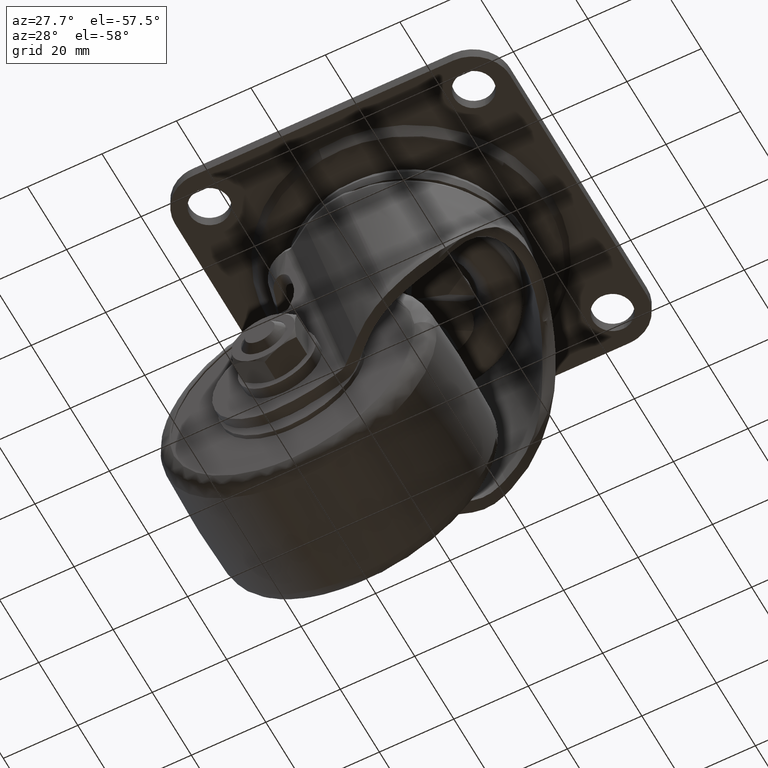
[diagram: clean part render]
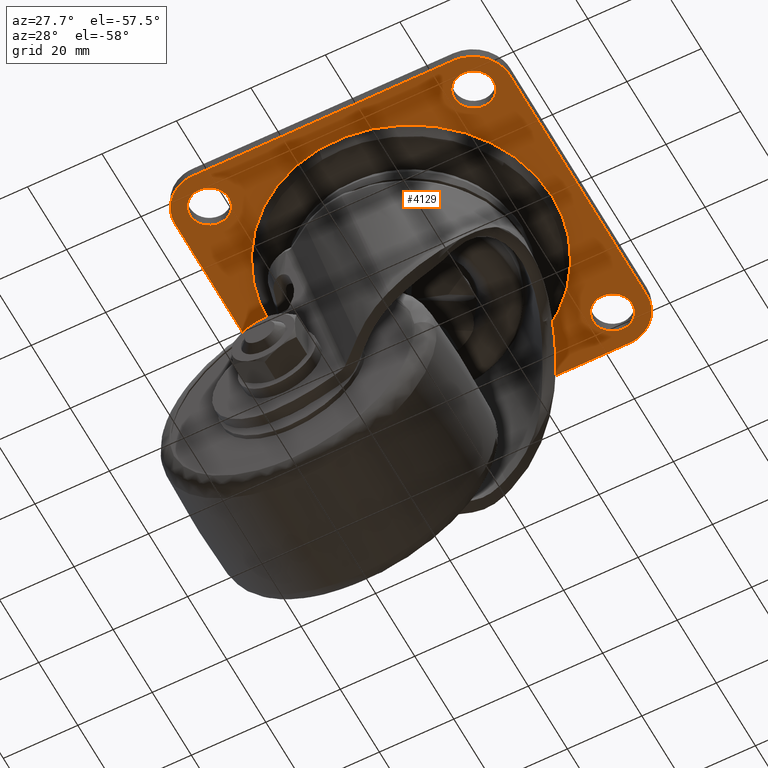
[diagram: same view with one face highlighted and labeled with its STEP entity id]
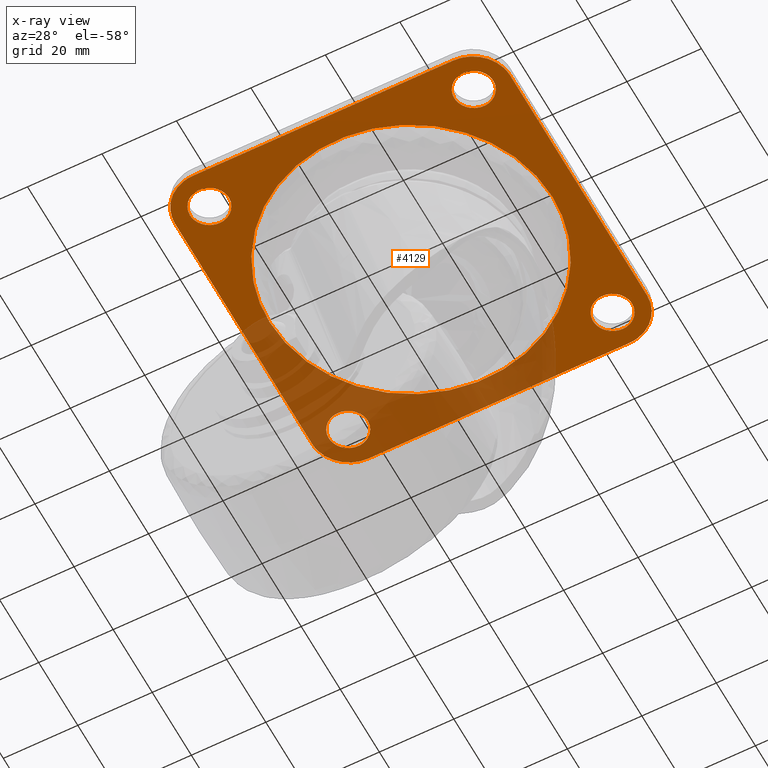
[diagram: x-ray of the same camera — body ghosted, the highlighted face saturated]
A machine part, auxiliary view. The second image highlights one B-rep face of the part: STEP entity #4129.
The next image is the same camera in x-ray: the body ghosted, the highlighted face saturated — about 30% of this face is hidden behind the body in this view.
In plain terms, the highlighted face is a freeform B-spline surface patch.
Its self-contained STEP definition (entity closure, byte-faithful):
#2417=CARTESIAN_POINT('',(-35.179495167385760,40.740207691711362,-3.200000000000090));
#2418=VERTEX_POINT('',#2417);
#2424=CARTESIAN_POINT('',(-30.250000000000000,35.500000000000000,-3.200000000000090));
#2425=VERTEX_POINT('',#2424);
#2426=CARTESIAN_POINT('',(-30.250000000000000,35.500000000000000,-3.200000000000090));
#2427=CARTESIAN_POINT('',(-30.249999999999982,40.438706851201779,-3.200000000000091));
#2428=CARTESIAN_POINT('',(-35.179495167385760,40.740207691711362,-3.200000000000091));
#2436=(BOUNDED_CURVE()B_SPLINE_CURVE(2,(#2426,#2427,#2428),.UNSPECIFIED.,.F.,.U.)B_SPLINE_CURVE_WITH_KNOTS((3,3),(0.500000000000000,0.739332962240116),.UNSPECIFIED.)CURVE()GEOMETRIC_REPRESENTATION_ITEM()RATIONAL_B_SPLINE_CURVE((1.0,0.719603993285335,0.976072041669233))REPRESENTATION_ITEM(''));
#2437=EDGE_CURVE('',#2425,#2418,#2436,.T.);
#2439=CARTESIAN_POINT('',(-35.820504832614240,30.259792308288642,-3.200000000000090));
#2440=VERTEX_POINT('',#2439);
#2441=CARTESIAN_POINT('',(-35.820504832614247,30.259792308288635,-3.200000000000091));
#2442=CARTESIAN_POINT('',(-35.660402007345787,30.250000000000004,-3.200000000000090));
#2443=CARTESIAN_POINT('',(-35.500000000000000,30.250000000000000,-3.200000000000090));
#2444=CARTESIAN_POINT('',(-30.249999999999986,30.249999999999986,-3.200000000000091));
#2445=CARTESIAN_POINT('',(-30.250000000000000,35.500000000000000,-3.200000000000090));
#2453=(BOUNDED_CURVE()B_SPLINE_CURVE(2,(#2441,#2442,#2443,#2444,#2445),.UNSPECIFIED.,.F.,.U.)B_SPLINE_CURVE_WITH_KNOTS((3,2,3),(0.239332962240116,0.250000000000000,0.500000000000000),.UNSPECIFIED.)CURVE()GEOMETRIC_REPRESENTATION_ITEM()RATIONAL_B_SPLINE_CURVE((0.976072041669233,0.987502787901212,1.0,0.707106781186547,1.0))REPRESENTATION_ITEM(''));
#2454=EDGE_CURVE('',#2440,#2425,#2453,.T.);
#2498=CARTESIAN_POINT('',(-40.749999999999993,35.500000000000000,-3.200000000000090));
#2499=VERTEX_POINT('',#2498);
#2500=CARTESIAN_POINT('',(-40.749999999999993,35.500000000000000,-3.200000000000090));
#2501=CARTESIAN_POINT('',(-40.749999999999993,30.561293148798196,-3.200000000000091));
#2502=CARTESIAN_POINT('',(-35.820504832614247,30.259792308288635,-3.200000000000091));
#2510=(BOUNDED_CURVE()B_SPLINE_CURVE(2,(#2500,#2501,#2502),.UNSPECIFIED.,.F.,.U.)B_SPLINE_CURVE_WITH_KNOTS((3,3),(0.0,0.239332962240116),.UNSPECIFIED.)CURVE()GEOMETRIC_REPRESENTATION_ITEM()RATIONAL_B_SPLINE_CURVE((1.0,0.719603993285335,0.976072041669233))REPRESENTATION_ITEM(''));
#2511=EDGE_CURVE('',#2499,#2440,#2510,.T.);
#2513=CARTESIAN_POINT('',(-35.179495167385760,40.740207691711362,-3.200000000000091));
#2514=CARTESIAN_POINT('',(-35.339597992654213,40.749999999999993,-3.200000000000090));
#2515=CARTESIAN_POINT('',(-35.500000000000000,40.749999999999993,-3.200000000000090));
#2516=CARTESIAN_POINT('',(-40.749999999999986,40.749999999999986,-3.200000000000091));
#2517=CARTESIAN_POINT('',(-40.749999999999993,35.500000000000000,-3.200000000000090));
#2525=(BOUNDED_CURVE()B_SPLINE_CURVE(2,(#2513,#2514,#2515,#2516,#2517),.UNSPECIFIED.,.F.,.U.)B_SPLINE_CURVE_WITH_KNOTS((3,2,3),(0.739332962240116,0.750000000000000,1.0),.UNSPECIFIED.)CURVE()GEOMETRIC_REPRESENTATION_ITEM()RATIONAL_B_SPLINE_CURVE((0.976072041669233,0.987502787901212,1.0,0.707106781186547,1.0))REPRESENTATION_ITEM(''));
#2526=EDGE_CURVE('',#2418,#2499,#2525,.T.);
#2599=CARTESIAN_POINT('',(35.820504832614240,40.740207691711362,-3.200000000000090));
#2600=VERTEX_POINT('',#2599);
#2606=CARTESIAN_POINT('',(40.749999999999993,35.500000000000000,-3.200000000000090));
#2607=VERTEX_POINT('',#2606);
#2608=CARTESIAN_POINT('',(40.749999999999993,35.500000000000000,-3.200000000000090));
#2609=CARTESIAN_POINT('',(40.749999999999986,40.438706851201786,-3.200000000000089));
#2610=CARTESIAN_POINT('',(35.820504832614240,40.740207691711355,-3.200000000000091));
#2618=(BOUNDED_CURVE()B_SPLINE_CURVE(2,(#2608,#2609,#2610),.UNSPECIFIED.,.F.,.U.)B_SPLINE_CURVE_WITH_KNOTS((3,3),(0.500000000000000,0.739332962240116),.UNSPECIFIED.)CURVE()GEOMETRIC_REPRESENTATION_ITEM()RATIONAL_B_SPLINE_CURVE((1.0,0.719603993285335,0.976072041669233))REPRESENTATION_ITEM(''));
#2619=EDGE_CURVE('',#2607,#2600,#2618,.T.);
#2621=CARTESIAN_POINT('',(35.179495167385753,30.259792308288642,-3.200000000000090));
#2622=VERTEX_POINT('',#2621);
#2623=CARTESIAN_POINT('',(35.179495167385760,30.259792308288631,-3.200000000000090));
#2624=CARTESIAN_POINT('',(35.339597992654205,30.249999999999993,-3.200000000000090));
#2625=CARTESIAN_POINT('',(35.500000000000000,30.250000000000000,-3.200000000000090));
#2626=CARTESIAN_POINT('',(40.749999999999986,30.249999999999986,-3.200000000000091));
#2627=CARTESIAN_POINT('',(40.749999999999993,35.500000000000000,-3.200000000000090));
#2635=(BOUNDED_CURVE()B_SPLINE_CURVE(2,(#2623,#2624,#2625,#2626,#2627),.UNSPECIFIED.,.F.,.U.)B_SPLINE_CURVE_WITH_KNOTS((3,2,3),(0.239332962240116,0.250000000000000,0.500000000000000),.UNSPECIFIED.)CURVE()GEOMETRIC_REPRESENTATION_ITEM()RATIONAL_B_SPLINE_CURVE((0.976072041669232,0.987502787901212,1.0,0.707106781186547,1.0))REPRESENTATION_ITEM(''));
#2636=EDGE_CURVE('',#2622,#2607,#2635,.T.);
#2680=CARTESIAN_POINT('',(30.250000000000000,35.500000000000000,-3.200000000000090));
#2681=VERTEX_POINT('',#2680);
#2682=CARTESIAN_POINT('',(30.250000000000000,35.500000000000000,-3.200000000000090));
#2683=CARTESIAN_POINT('',(30.250000000000004,30.561293148798214,-3.200000000000091));
#2684=CARTESIAN_POINT('',(35.179495167385753,30.259792308288635,-3.200000000000091));
#2692=(BOUNDED_CURVE()B_SPLINE_CURVE(2,(#2682,#2683,#2684),.UNSPECIFIED.,.F.,.U.)B_SPLINE_CURVE_WITH_KNOTS((3,3),(0.0,0.239332962240116),.UNSPECIFIED.)CURVE()GEOMETRIC_REPRESENTATION_ITEM()RATIONAL_B_SPLINE_CURVE((1.0,0.719603993285336,0.976072041669232))REPRESENTATION_ITEM(''));
#2693=EDGE_CURVE('',#2681,#2622,#2692,.T.);
#2695=CARTESIAN_POINT('',(35.820504832614240,40.740207691711355,-3.200000000000091));
#2696=CARTESIAN_POINT('',(35.660402007345780,40.749999999999993,-3.200000000000091));
#2697=CARTESIAN_POINT('',(35.500000000000000,40.749999999999993,-3.200000000000090));
#2698=CARTESIAN_POINT('',(30.249999999999986,40.749999999999986,-3.200000000000091));
#2699=CARTESIAN_POINT('',(30.250000000000000,35.500000000000000,-3.200000000000090));
#2707=(BOUNDED_CURVE()B_SPLINE_CURVE(2,(#2695,#2696,#2697,#2698,#2699),.UNSPECIFIED.,.F.,.U.)B_SPLINE_CURVE_WITH_KNOTS((3,2,3),(0.739332962240116,0.750000000000000,1.0),.UNSPECIFIED.)CURVE()GEOMETRIC_REPRESENTATION_ITEM()RATIONAL_B_SPLINE_CURVE((0.976072041669233,0.987502787901212,1.0,0.707106781186547,1.0))REPRESENTATION_ITEM(''));
#2708=EDGE_CURVE('',#2600,#2681,#2707,.T.);
#2781=CARTESIAN_POINT('',(35.820504832614247,-30.259792308288642,-3.200000000000091));
#2782=VERTEX_POINT('',#2781);
#2788=CARTESIAN_POINT('',(40.749999999999993,-35.500000000000000,-3.200000000000090));
#2789=VERTEX_POINT('',#2788);
#2790=CARTESIAN_POINT('',(40.749999999999993,-35.500000000000000,-3.200000000000090));
#2791=CARTESIAN_POINT('',(40.750000000000000,-30.561293148798214,-3.200000000000091));
#2792=CARTESIAN_POINT('',(35.820504832614247,-30.259792308288638,-3.200000000000090));
#2800=(BOUNDED_CURVE()B_SPLINE_CURVE(2,(#2790,#2791,#2792),.UNSPECIFIED.,.F.,.U.)B_SPLINE_CURVE_WITH_KNOTS((3,3),(0.500000000000000,0.739332962240116),.UNSPECIFIED.)CURVE()GEOMETRIC_REPRESENTATION_ITEM()RATIONAL_B_SPLINE_CURVE((1.0,0.719603993285336,0.976072041669232))REPRESENTATION_ITEM(''));
#2801=EDGE_CURVE('',#2789,#2782,#2800,.T.);
#2803=CARTESIAN_POINT('',(35.179495167385753,-40.740207691711362,-3.200000000000090));
#2804=VERTEX_POINT('',#2803);
#2805=CARTESIAN_POINT('',(35.179495167385753,-40.740207691711348,-3.200000000000091));
#2806=CARTESIAN_POINT('',(35.339597992654220,-40.749999999999993,-3.200000000000090));
#2807=CARTESIAN_POINT('',(35.500000000000000,-40.749999999999993,-3.200000000000090));
#2808=CARTESIAN_POINT('',(40.749999999999986,-40.749999999999986,-3.200000000000091));
#2809=CARTESIAN_POINT('',(40.749999999999993,-35.500000000000000,-3.200000000000090));
#2817=(BOUNDED_CURVE()B_SPLINE_CURVE(2,(#2805,#2806,#2807,#2808,#2809),.UNSPECIFIED.,.F.,.U.)B_SPLINE_CURVE_WITH_KNOTS((3,2,3),(0.239332962240116,0.250000000000000,0.500000000000000),.UNSPECIFIED.)CURVE()GEOMETRIC_REPRESENTATION_ITEM()RATIONAL_B_SPLINE_CURVE((0.976072041669232,0.987502787901212,1.0,0.707106781186547,1.0))REPRESENTATION_ITEM(''));
#2818=EDGE_CURVE('',#2804,#2789,#2817,.T.);
#2862=CARTESIAN_POINT('',(30.250000000000000,-35.500000000000000,-3.200000000000090));
#2863=VERTEX_POINT('',#2862);
#2864=CARTESIAN_POINT('',(30.250000000000000,-35.500000000000000,-3.200000000000090));
#2865=CARTESIAN_POINT('',(30.250000000000004,-40.438706851201779,-3.200000000000091));
#2866=CARTESIAN_POINT('',(35.179495167385753,-40.740207691711355,-3.200000000000090));
#2874=(BOUNDED_CURVE()B_SPLINE_CURVE(2,(#2864,#2865,#2866),.UNSPECIFIED.,.F.,.U.)B_SPLINE_CURVE_WITH_KNOTS((3,3),(0.0,0.239332962240116),.UNSPECIFIED.)CURVE()GEOMETRIC_REPRESENTATION_ITEM()RATIONAL_B_SPLINE_CURVE((1.0,0.719603993285336,0.976072041669232))REPRESENTATION_ITEM(''));
#2875=EDGE_CURVE('',#2863,#2804,#2874,.T.);
#2877=CARTESIAN_POINT('',(35.820504832614247,-30.259792308288638,-3.200000000000090));
#2878=CARTESIAN_POINT('',(35.660402007345795,-30.250000000000000,-3.200000000000090));
#2879=CARTESIAN_POINT('',(35.500000000000000,-30.250000000000000,-3.200000000000090));
#2880=CARTESIAN_POINT('',(30.249999999999986,-30.249999999999986,-3.200000000000091));
#2881=CARTESIAN_POINT('',(30.250000000000000,-35.500000000000000,-3.200000000000090));
#2889=(BOUNDED_CURVE()B_SPLINE_CURVE(2,(#2877,#2878,#2879,#2880,#2881),.UNSPECIFIED.,.F.,.U.)B_SPLINE_CURVE_WITH_KNOTS((3,2,3),(0.739332962240116,0.750000000000000,1.0),.UNSPECIFIED.)CURVE()GEOMETRIC_REPRESENTATION_ITEM()RATIONAL_B_SPLINE_CURVE((0.976072041669232,0.987502787901212,1.0,0.707106781186547,1.0))REPRESENTATION_ITEM(''));
#2890=EDGE_CURVE('',#2782,#2863,#2889,.T.);
#2963=CARTESIAN_POINT('',(-35.179495167385760,-30.259792308288642,-3.200000000000090));
#2964=VERTEX_POINT('',#2963);
#2970=CARTESIAN_POINT('',(-30.250000000000000,-35.500000000000000,-3.200000000000090));
#2971=VERTEX_POINT('',#2970);
#2972=CARTESIAN_POINT('',(-30.250000000000000,-35.500000000000000,-3.200000000000090));
#2973=CARTESIAN_POINT('',(-30.249999999999982,-30.561293148798196,-3.200000000000091));
#2974=CARTESIAN_POINT('',(-35.179495167385760,-30.259792308288635,-3.200000000000091));
#2982=(BOUNDED_CURVE()B_SPLINE_CURVE(2,(#2972,#2973,#2974),.UNSPECIFIED.,.F.,.U.)B_SPLINE_CURVE_WITH_KNOTS((3,3),(0.500000000000000,0.739332962240116),.UNSPECIFIED.)CURVE()GEOMETRIC_REPRESENTATION_ITEM()RATIONAL_B_SPLINE_CURVE((1.0,0.719603993285335,0.976072041669233))REPRESENTATION_ITEM(''));
#2983=EDGE_CURVE('',#2971,#2964,#2982,.T.);
#2985=CARTESIAN_POINT('',(-35.820504832614240,-40.740207691711362,-3.200000000000090));
#2986=VERTEX_POINT('',#2985);
#2987=CARTESIAN_POINT('',(-35.820504832614240,-40.740207691711362,-3.200000000000090));
#2988=CARTESIAN_POINT('',(-35.660402007345780,-40.750000000000007,-3.200000000000090));
#2989=CARTESIAN_POINT('',(-35.500000000000000,-40.749999999999993,-3.200000000000090));
#2990=CARTESIAN_POINT('',(-30.249999999999986,-40.749999999999986,-3.200000000000091));
#2991=CARTESIAN_POINT('',(-30.250000000000000,-35.500000000000000,-3.200000000000090));
#2999=(BOUNDED_CURVE()B_SPLINE_CURVE(2,(#2987,#2988,#2989,#2990,#2991),.UNSPECIFIED.,.F.,.U.)B_SPLINE_CURVE_WITH_KNOTS((3,2,3),(0.239332962240116,0.250000000000000,0.500000000000000),.UNSPECIFIED.)CURVE()GEOMETRIC_REPRESENTATION_ITEM()RATIONAL_B_SPLINE_CURVE((0.976072041669233,0.987502787901212,1.0,0.707106781186547,1.0))REPRESENTATION_ITEM(''));
#3000=EDGE_CURVE('',#2986,#2971,#2999,.T.);
#3044=CARTESIAN_POINT('',(-40.749999999999993,-35.500000000000000,-3.200000000000090));
#3045=VERTEX_POINT('',#3044);
#3046=CARTESIAN_POINT('',(-40.749999999999993,-35.500000000000000,-3.200000000000090));
#3047=CARTESIAN_POINT('',(-40.749999999999979,-40.438706851201779,-3.200000000000089));
#3048=CARTESIAN_POINT('',(-35.820504832614247,-40.740207691711355,-3.200000000000092));
#3056=(BOUNDED_CURVE()B_SPLINE_CURVE(2,(#3046,#3047,#3048),.UNSPECIFIED.,.F.,.U.)B_SPLINE_CURVE_WITH_KNOTS((3,3),(0.0,0.239332962240116),.UNSPECIFIED.)CURVE()GEOMETRIC_REPRESENTATION_ITEM()RATIONAL_B_SPLINE_CURVE((1.0,0.719603993285335,0.976072041669233))REPRESENTATION_ITEM(''));
#3057=EDGE_CURVE('',#3045,#2986,#3056,.T.);
#3059=CARTESIAN_POINT('',(-35.179495167385760,-30.259792308288635,-3.200000000000091));
#3060=CARTESIAN_POINT('',(-35.339597992654213,-30.250000000000004,-3.200000000000090));
#3061=CARTESIAN_POINT('',(-35.500000000000000,-30.250000000000000,-3.200000000000090));
#3062=CARTESIAN_POINT('',(-40.749999999999986,-30.249999999999986,-3.200000000000091));
#3063=CARTESIAN_POINT('',(-40.749999999999993,-35.500000000000000,-3.200000000000090));
#3071=(BOUNDED_CURVE()B_SPLINE_CURVE(2,(#3059,#3060,#3061,#3062,#3063),.UNSPECIFIED.,.F.,.U.)B_SPLINE_CURVE_WITH_KNOTS((3,2,3),(0.739332962240116,0.750000000000000,1.0),.UNSPECIFIED.)CURVE()GEOMETRIC_REPRESENTATION_ITEM()RATIONAL_B_SPLINE_CURVE((0.976072041669233,0.987502787901212,1.0,0.707106781186547,1.0))REPRESENTATION_ITEM(''));
#3072=EDGE_CURVE('',#2964,#3045,#3071,.T.);
#3795=CARTESIAN_POINT('',(45.0,35.0,-3.200000000000090));
#3796=VERTEX_POINT('',#3795);
#3802=CARTESIAN_POINT('',(35.0,45.0,-3.200000000000090));
#3803=VERTEX_POINT('',#3802);
#3804=CARTESIAN_POINT('',(45.000000000000007,35.0,-3.200000000000090));
#3805=CARTESIAN_POINT('',(45.000000000000014,45.000000000000014,-3.200000000000090));
#3806=CARTESIAN_POINT('',(35.0,45.000000000000007,-3.200000000000090));
#3814=(BOUNDED_CURVE()B_SPLINE_CURVE(2,(#3804,#3805,#3806),.UNSPECIFIED.,.F.,.U.)CURVE()GEOMETRIC_REPRESENTATION_ITEM()QUASI_UNIFORM_CURVE()RATIONAL_B_SPLINE_CURVE((1.0,0.707106781186548,1.0))REPRESENTATION_ITEM(''));
#3815=EDGE_CURVE('',#3796,#3803,#3814,.T.);
#3831=CARTESIAN_POINT('',(45.0,-35.0,-3.200000000000090));
#3832=VERTEX_POINT('',#3831);
#3838=CARTESIAN_POINT('',(45.0,-35.0,-3.200000000000090));
#3839=CARTESIAN_POINT('',(45.0,35.0,-3.200000000000090));
#3840=QUASI_UNIFORM_CURVE('',1,(#3838,#3839),.UNSPECIFIED.,.F.,.U.);
#3841=EDGE_CURVE('',#3832,#3796,#3840,.T.);
#3862=CARTESIAN_POINT('',(35.0,-45.0,-3.200000000000090));
#3863=VERTEX_POINT('',#3862);
#3869=CARTESIAN_POINT('',(35.0,-45.000000000000007,-3.200000000000090));
#3870=CARTESIAN_POINT('',(45.000000000000014,-45.000000000000014,-3.200000000000090));
#3871=CARTESIAN_POINT('',(45.000000000000007,-35.0,-3.200000000000090));
#3879=(BOUNDED_CURVE()B_SPLINE_CURVE(2,(#3869,#3870,#3871),.UNSPECIFIED.,.F.,.U.)CURVE()GEOMETRIC_REPRESENTATION_ITEM()QUASI_UNIFORM_CURVE()RATIONAL_B_SPLINE_CURVE((1.0,0.707106781186548,1.0))REPRESENTATION_ITEM(''));
#3880=EDGE_CURVE('',#3863,#3832,#3879,.T.);
#3892=CARTESIAN_POINT('',(-35.0,-45.0,-3.200000000000090));
#3893=VERTEX_POINT('',#3892);
#3899=CARTESIAN_POINT('',(-35.0,-45.0,-3.200000000000090));
#3900=CARTESIAN_POINT('',(35.0,-45.0,-3.200000000000090));
#3901=QUASI_UNIFORM_CURVE('',1,(#3899,#3900),.UNSPECIFIED.,.F.,.U.);
#3902=EDGE_CURVE('',#3893,#3863,#3901,.T.);
#3923=CARTESIAN_POINT('',(-45.0,-35.0,-3.200000000000090));
#3924=VERTEX_POINT('',#3923);
#3930=CARTESIAN_POINT('',(-45.000000000000007,-35.0,-3.200000000000090));
#3931=CARTESIAN_POINT('',(-45.000000000000014,-45.000000000000014,-3.200000000000090));
#3932=CARTESIAN_POINT('',(-35.0,-45.000000000000007,-3.200000000000090));
#3940=(BOUNDED_CURVE()B_SPLINE_CURVE(2,(#3930,#3931,#3932),.UNSPECIFIED.,.F.,.U.)CURVE()GEOMETRIC_REPRESENTATION_ITEM()QUASI_UNIFORM_CURVE()RATIONAL_B_SPLINE_CURVE((1.0,0.707106781186548,1.0))REPRESENTATION_ITEM(''));
#3941=EDGE_CURVE('',#3924,#3893,#3940,.T.);
#3953=CARTESIAN_POINT('',(-45.0,35.0,-3.200000000000090));
#3954=VERTEX_POINT('',#3953);
#3960=CARTESIAN_POINT('',(-45.0,35.0,-3.200000000000090));
#3961=CARTESIAN_POINT('',(-45.0,-35.0,-3.200000000000090));
#3962=QUASI_UNIFORM_CURVE('',1,(#3960,#3961),.UNSPECIFIED.,.F.,.U.);
#3963=EDGE_CURVE('',#3954,#3924,#3962,.T.);
#3984=CARTESIAN_POINT('',(-35.0,45.0,-3.200000000000090));
#3985=VERTEX_POINT('',#3984);
#3991=CARTESIAN_POINT('',(-35.0,45.000000000000007,-3.200000000000090));
#3992=CARTESIAN_POINT('',(-45.000000000000014,45.000000000000014,-3.200000000000090));
#3993=CARTESIAN_POINT('',(-45.000000000000007,35.0,-3.200000000000090));
#4001=(BOUNDED_CURVE()B_SPLINE_CURVE(2,(#3991,#3992,#3993),.UNSPECIFIED.,.F.,.U.)CURVE()GEOMETRIC_REPRESENTATION_ITEM()QUASI_UNIFORM_CURVE()RATIONAL_B_SPLINE_CURVE((1.0,0.707106781186548,1.0))REPRESENTATION_ITEM(''));
#4002=EDGE_CURVE('',#3985,#3954,#4001,.T.);
#4015=CARTESIAN_POINT('',(35.0,45.0,-3.200000000000090));
#4016=CARTESIAN_POINT('',(-35.0,45.0,-3.200000000000090));
#4017=QUASI_UNIFORM_CURVE('',1,(#4015,#4016),.UNSPECIFIED.,.F.,.U.);
#4018=EDGE_CURVE('',#3803,#3985,#4017,.T.);
#4024=CARTESIAN_POINT('',(-49.495499825562533,49.495499825562533,-3.200000000000105));
#4025=CARTESIAN_POINT('',(49.495502239550653,49.495499825562533,-3.200000000000105));
#4026=CARTESIAN_POINT('',(-49.495499825562533,-49.495502239550653,-3.200000000000105));
#4027=CARTESIAN_POINT('',(49.495502239550653,-49.495502239550653,-3.200000000000105));
#4028=B_SPLINE_SURFACE_WITH_KNOTS('',1,1,((#4024,#4026),(#4025,#4027)),.UNSPECIFIED.,.F.,.F.,.U.,(2,2),(2,2),(0.0,98.991002065113179),(0.0,98.991002065113179),.UNSPECIFIED.);
#4029=ORIENTED_EDGE('',*,*,#4018,.F.);
#4030=ORIENTED_EDGE('',*,*,#3815,.F.);
#4031=ORIENTED_EDGE('',*,*,#3841,.F.);
#4032=ORIENTED_EDGE('',*,*,#3880,.F.);
#4033=ORIENTED_EDGE('',*,*,#3902,.F.);
#4034=ORIENTED_EDGE('',*,*,#3941,.F.);
#4035=ORIENTED_EDGE('',*,*,#3963,.F.);
#4036=ORIENTED_EDGE('',*,*,#4002,.F.);
#4037=EDGE_LOOP('',(#4029,#4030,#4031,#4032,#4033,#4034,#4035,#4036));
#4038=FACE_OUTER_BOUND('',#4037,.T.);
#4039=ORIENTED_EDGE('',*,*,#2983,.T.);
#4040=ORIENTED_EDGE('',*,*,#3072,.T.);
#4041=ORIENTED_EDGE('',*,*,#3057,.T.);
#4042=ORIENTED_EDGE('',*,*,#3000,.T.);
#4043=EDGE_LOOP('',(#4039,#4040,#4041,#4042));
#4044=FACE_BOUND('',#4043,.T.);
#4045=ORIENTED_EDGE('',*,*,#2801,.T.);
#4046=ORIENTED_EDGE('',*,*,#2890,.T.);
#4047=ORIENTED_EDGE('',*,*,#2875,.T.);
#4048=ORIENTED_EDGE('',*,*,#2818,.T.);
#4049=EDGE_LOOP('',(#4045,#4046,#4047,#4048));
#4050=FACE_BOUND('',#4049,.T.);
#4051=ORIENTED_EDGE('',*,*,#2619,.T.);
#4052=ORIENTED_EDGE('',*,*,#2708,.T.);
#4053=ORIENTED_EDGE('',*,*,#2693,.T.);
#4054=ORIENTED_EDGE('',*,*,#2636,.T.);
#4055=EDGE_LOOP('',(#4051,#4052,#4053,#4054));
#4056=FACE_BOUND('',#4055,.T.);
#4057=ORIENTED_EDGE('',*,*,#2437,.T.);
#4058=ORIENTED_EDGE('',*,*,#2526,.T.);
#4059=ORIENTED_EDGE('',*,*,#2511,.T.);
#4060=ORIENTED_EDGE('',*,*,#2454,.T.);
#4061=EDGE_LOOP('',(#4057,#4058,#4059,#4060));
#4062=FACE_BOUND('',#4061,.T.);
#4063=CARTESIAN_POINT('',(-38.0,0.0,-3.200000000000105));
#4064=VERTEX_POINT('',#4063);
#4065=CARTESIAN_POINT('',(4.959995304372351,37.674904732204382,-3.199999999998216));
#4066=VERTEX_POINT('',#4065);
#4067=CARTESIAN_POINT('',(-38.0,0.0,-3.200000000000105));
#4068=CARTESIAN_POINT('',(-37.999999999999950,38.000000000000398,-3.199999999999277));
#4069=CARTESIAN_POINT('',(1.083608E-013,38.000000000000867,-3.199999999998332));
#4070=CARTESIAN_POINT('',(2.490651586984369,38.000000000000902,-3.199999999998271));
#4071=CARTESIAN_POINT('',(4.959995304372351,37.674904732204382,-3.199999999998215));
#4079=(BOUNDED_CURVE()B_SPLINE_CURVE(2,(#4067,#4068,#4069,#4070,#4071),.UNSPECIFIED.,.F.,.U.)B_SPLINE_CURVE_WITH_KNOTS((3,2,3),(0.0,0.250000000000000,0.272560615555887),.UNSPECIFIED.)CURVE()GEOMETRIC_REPRESENTATION_ITEM()RATIONAL_B_SPLINE_CURVE((1.0,0.707106781186548,1.0,0.973568594765693,0.951907659708131))REPRESENTATION_ITEM(''));
#4080=EDGE_CURVE('',#4064,#4066,#4079,.T.);
#4081=ORIENTED_EDGE('',*,*,#4080,.F.);
#4082=CARTESIAN_POINT('',(-4.959995304372356,-37.674904732204368,-3.199999999998215));
#4083=VERTEX_POINT('',#4082);
#4084=CARTESIAN_POINT('',(-4.959995304372356,-37.674904732204368,-3.199999999998215));
#4085=CARTESIAN_POINT('',(-38.000000000000078,-33.325105593716074,-3.199999999999160));
#4086=CARTESIAN_POINT('',(-38.0,0.0,-3.200000000000105));
#4094=(BOUNDED_CURVE()B_SPLINE_CURVE(2,(#4084,#4085,#4086),.UNSPECIFIED.,.F.,.U.)B_SPLINE_CURVE_WITH_KNOTS((3,3),(0.772560615555887,1.0),.UNSPECIFIED.)CURVE()GEOMETRIC_REPRESENTATION_ITEM()RATIONAL_B_SPLINE_CURVE((0.951907659708131,0.733538186420854,1.0))REPRESENTATION_ITEM(''));
#4095=EDGE_CURVE('',#4083,#4064,#4094,.T.);
#4096=ORIENTED_EDGE('',*,*,#4095,.F.);
#4097=CARTESIAN_POINT('',(38.0,0.0,-3.200000000000105));
#4098=VERTEX_POINT('',#4097);
#4099=CARTESIAN_POINT('',(38.0,0.0,-3.200000000000105));
#4100=CARTESIAN_POINT('',(37.999999999999950,-38.000000000000398,-3.199999999999277));
#4101=CARTESIAN_POINT('',(-1.008589E-013,-38.000000000000867,-3.199999999998332));
#4102=CARTESIAN_POINT('',(-2.490651586984368,-38.000000000000895,-3.199999999998270));
#4103=CARTESIAN_POINT('',(-4.959995304372356,-37.674904732204368,-3.199999999998215));
#4111=(BOUNDED_CURVE()B_SPLINE_CURVE(2,(#4099,#4100,#4101,#4102,#4103),.UNSPECIFIED.,.F.,.U.)B_SPLINE_CURVE_WITH_KNOTS((3,2,3),(0.500000000000000,0.750000000000000,0.772560615555887),.UNSPECIFIED.)CURVE()GEOMETRIC_REPRESENTATION_ITEM()RATIONAL_B_SPLINE_CURVE((1.0,0.707106781186548,1.0,0.973568594765693,0.951907659708131))REPRESENTATION_ITEM(''));
#4112=EDGE_CURVE('',#4098,#4083,#4111,.T.);
#4113=ORIENTED_EDGE('',*,*,#4112,.F.);
#4114=CARTESIAN_POINT('',(4.959995304372351,37.674904732204382,-3.199999999998215));
#4115=CARTESIAN_POINT('',(38.000000000000057,33.325105593716053,-3.199999999999161));
#4116=CARTESIAN_POINT('',(38.0,0.0,-3.200000000000105));
#4124=(BOUNDED_CURVE()B_SPLINE_CURVE(2,(#4114,#4115,#4116),.UNSPECIFIED.,.F.,.U.)B_SPLINE_CURVE_WITH_KNOTS((3,3),(0.272560615555887,0.500000000000000),.UNSPECIFIED.)CURVE()GEOMETRIC_REPRESENTATION_ITEM()RATIONAL_B_SPLINE_CURVE((0.951907659708131,0.733538186420854,1.0))REPRESENTATION_ITEM(''));
#4125=EDGE_CURVE('',#4066,#4098,#4124,.T.);
#4126=ORIENTED_EDGE('',*,*,#4125,.F.);
#4127=EDGE_LOOP('',(#4081,#4096,#4113,#4126));
#4128=FACE_BOUND('',#4127,.T.);
#4129=ADVANCED_FACE('',(#4038,#4044,#4050,#4056,#4062,#4128),#4028,.T.);